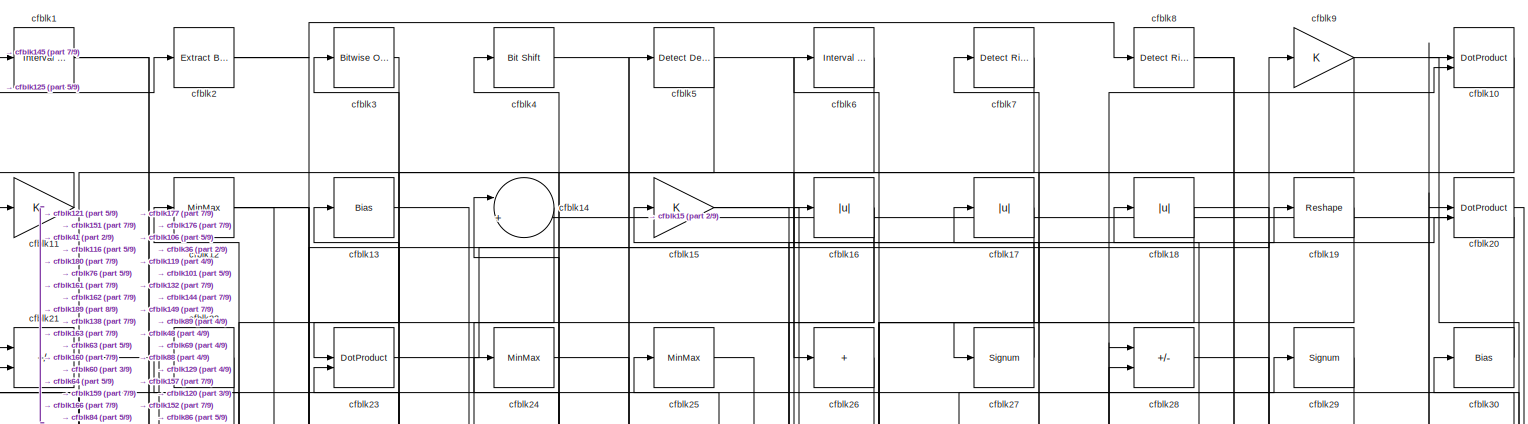
[diagram: root canvas - part 1/9, full width, top band]
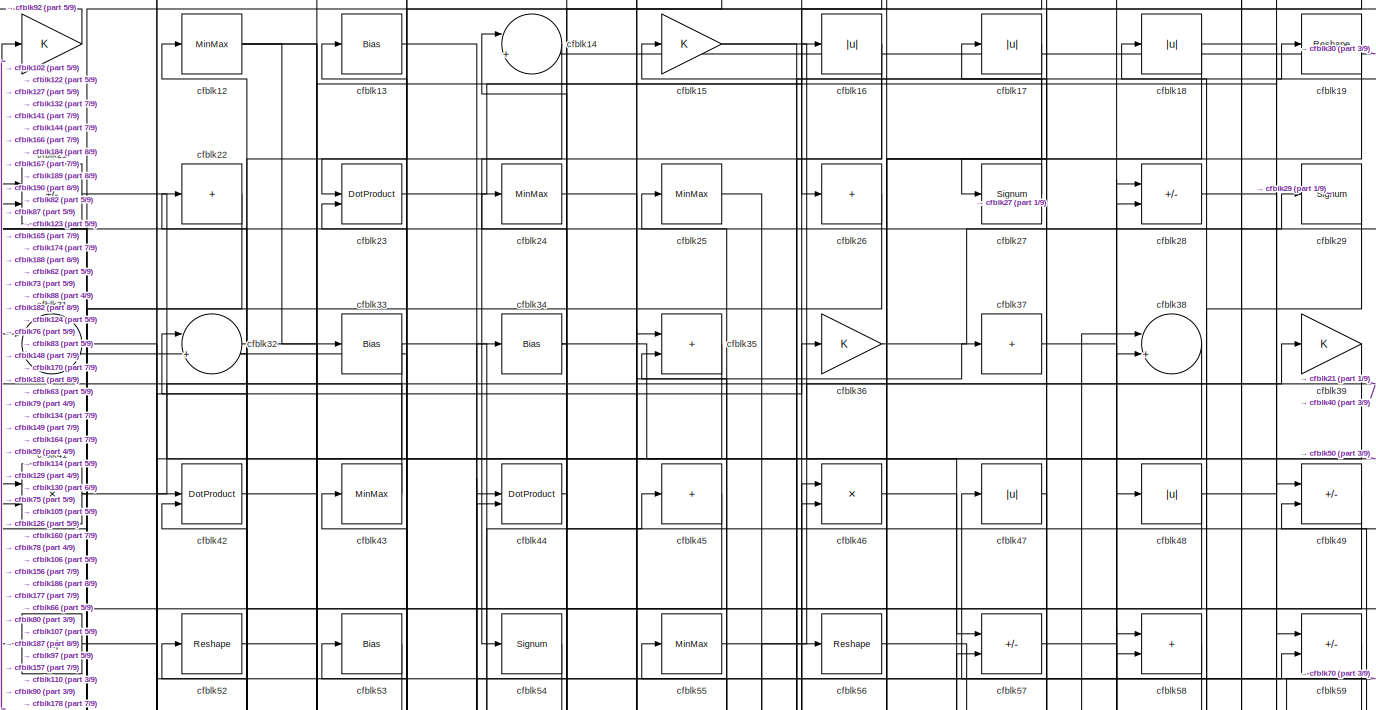
[diagram: root canvas - part 2/9, full width, top band]
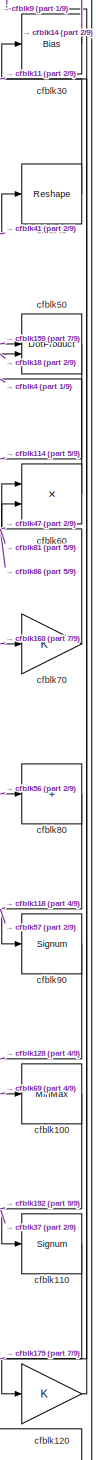
[diagram: root canvas - part 3/9, middle right region]
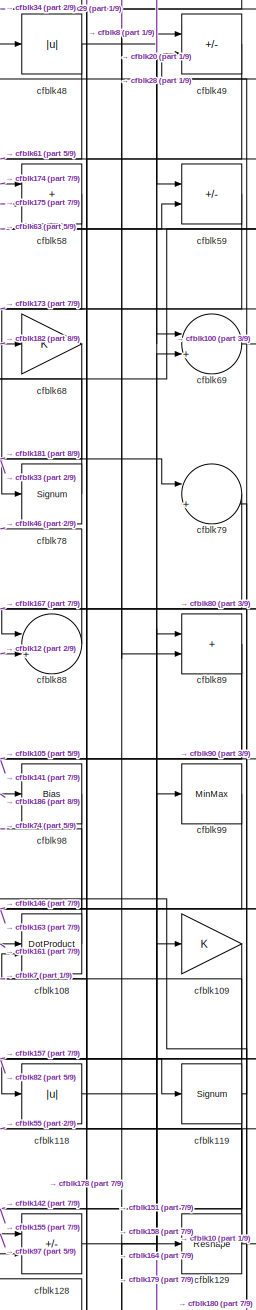
[diagram: root canvas - part 4/9, middle right region]
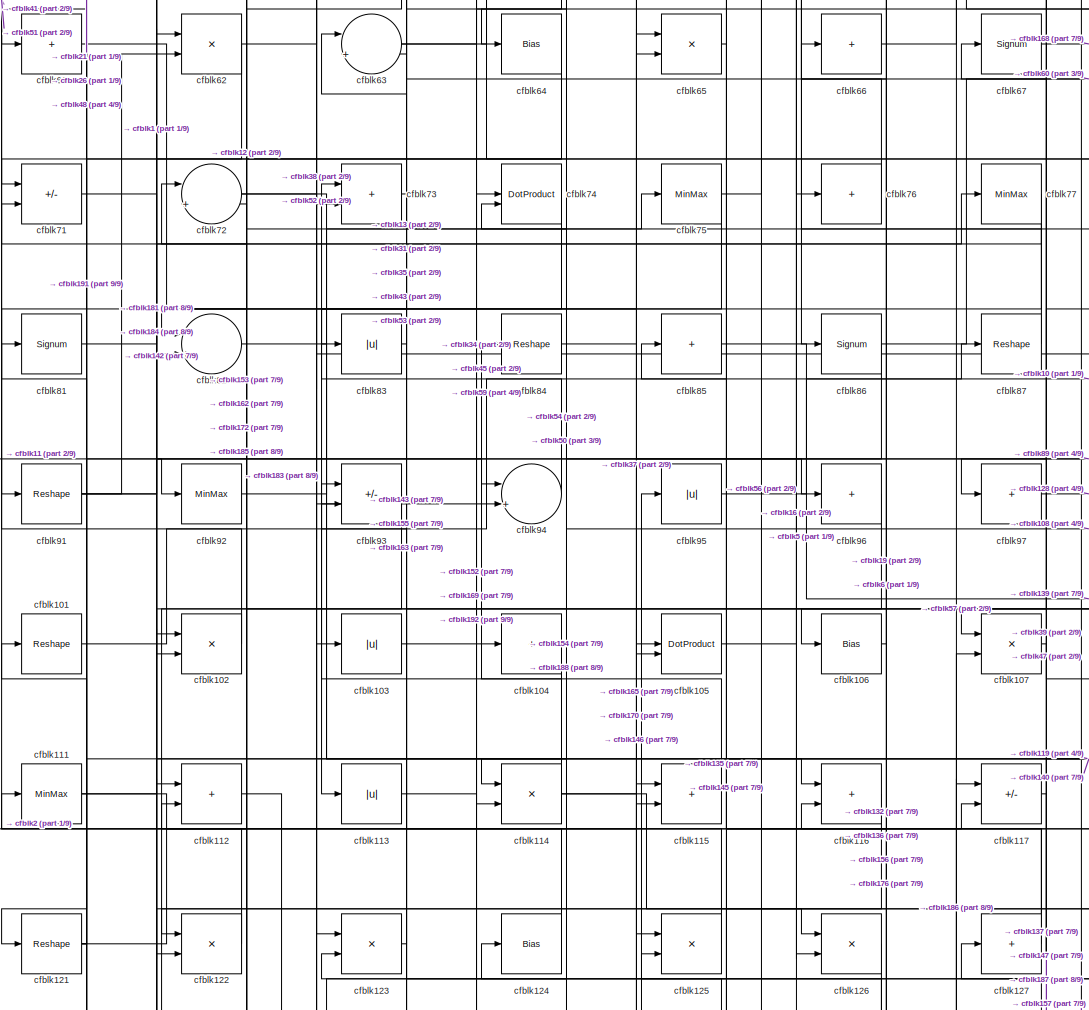
[diagram: root canvas - part 5/9, central region]
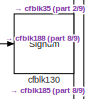
[diagram: root canvas - part 6/9, middle right region]
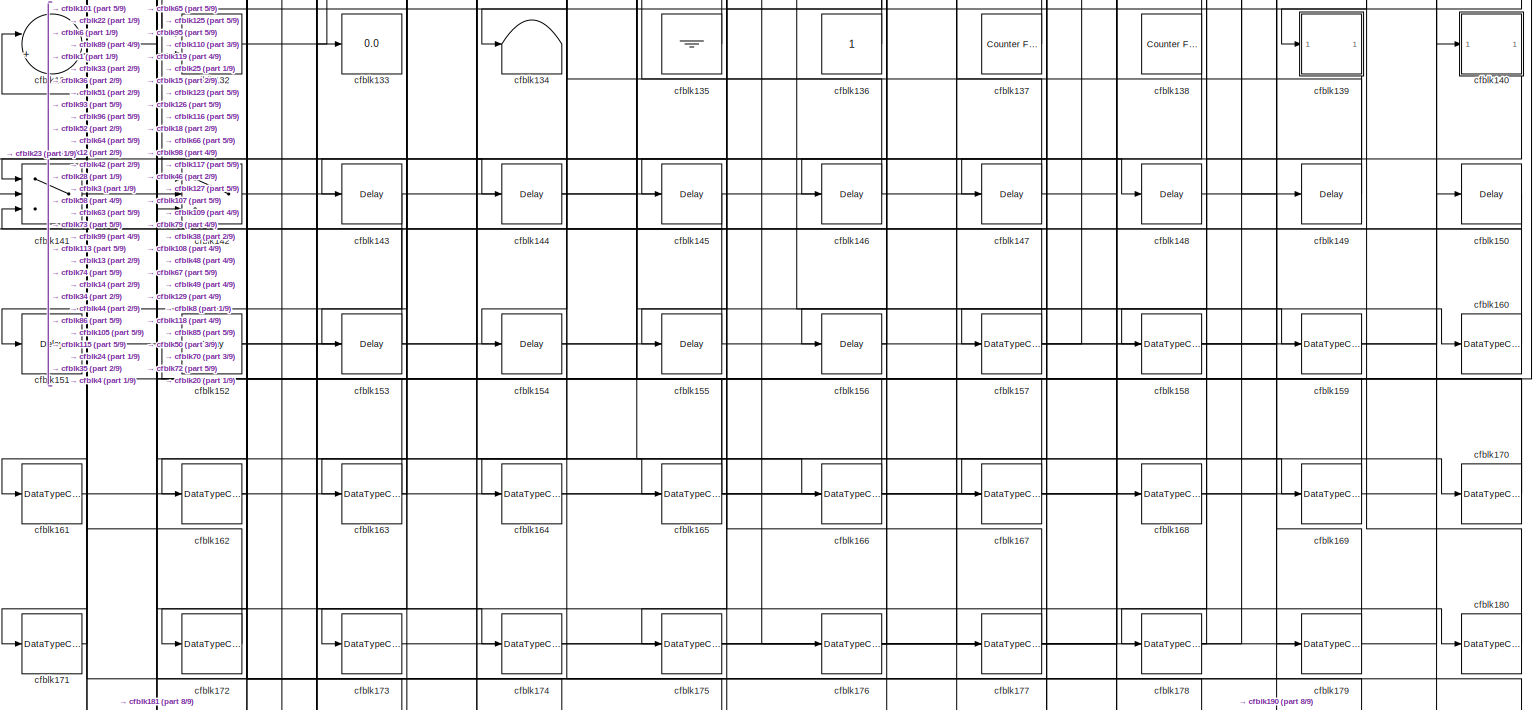
[diagram: root canvas - part 7/9, full width, bottom band]
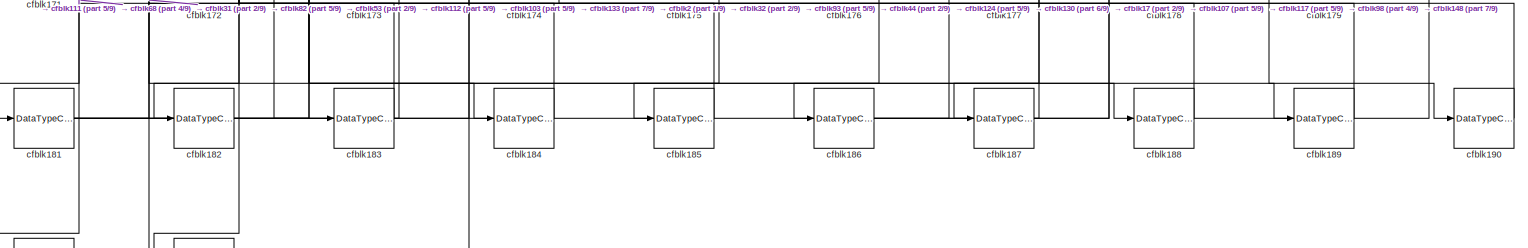
[diagram: root canvas - part 8/9, full width, bottom band]
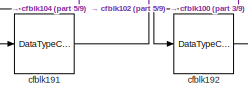
[diagram: root canvas - part 9/9, bottom left region]
MODEL slx_95c97eb327b1
KIND model
CONFIG AbsTol = auto
CONFIG EnableMultiTasking = off
CONFIG FixedStep = auto
CONFIG MaxStep = auto
CONFIG MinStep = auto
CONFIG RelTol = 1e-3
CONFIG SampleTimeConstraint = Unconstrained
CONFIG SolverName = VariableStepAuto
CONFIG StartTime = 0.0
CONFIG StopTime = 10.0
BLOCK [Reference] cfblk1  REF=hdlsllib/Logic and Bit
Operations/Interval Test
  SourceBlock = hdlsllib/Logic and Bit\nOperations/Interval Test
  SourceType = Interval Test
BLOCK [DotProduct] cfblk10
  OutDataTypeStr = Inherit: Inherit via internal rule
BLOCK [MinMax] cfblk100
BLOCK [Reshape] cfblk101
BLOCK [Product] cfblk102
  Inputs = */
  RndMeth = Zero
  SaturateOnIntegerOverflow = on
BLOCK [Abs] cfblk103
  SaturateOnIntegerOverflow = off
BLOCK [Sum] cfblk104
  IconShape = rectangular
  Inputs = +
BLOCK [DotProduct] cfblk105
  OutDataTypeStr = Inherit: Inherit via internal rule
BLOCK [Bias] cfblk106
  Bias = 0.0
  SaturateOnIntegerOverflow = off
BLOCK [Product] cfblk107
  Inputs = */
  RndMeth = Zero
  SaturateOnIntegerOverflow = on
BLOCK [DotProduct] cfblk108
  OutDataTypeStr = Inherit: Inherit via internal rule
BLOCK [Gain] cfblk109
BLOCK [Gain] cfblk11
BLOCK [Signum] cfblk110
BLOCK [MinMax] cfblk111
BLOCK [Sum] cfblk112
  IconShape = rectangular
BLOCK [Abs] cfblk113
  SaturateOnIntegerOverflow = off
BLOCK [Product] cfblk114
  Inputs = */
  RndMeth = Zero
  SaturateOnIntegerOverflow = on
BLOCK [Sum] cfblk115
  IconShape = rectangular
BLOCK [Sum] cfblk116
  IconShape = rectangular
BLOCK [Sum] cfblk117
  IconShape = rectangular
  Inputs = +-
BLOCK [Abs] cfblk118
  SaturateOnIntegerOverflow = off
BLOCK [Signum] cfblk119
BLOCK [MinMax] cfblk12
BLOCK [Gain] cfblk120
BLOCK [Reshape] cfblk121
BLOCK [Product] cfblk122
  Inputs = */
  RndMeth = Zero
  SaturateOnIntegerOverflow = on
BLOCK [Product] cfblk123
  Inputs = */
  RndMeth = Zero
  SaturateOnIntegerOverflow = on
BLOCK [Bias] cfblk124
  Bias = 0.0
  SaturateOnIntegerOverflow = off
BLOCK [Product] cfblk125
  Inputs = */
  RndMeth = Zero
  SaturateOnIntegerOverflow = on
BLOCK [Product] cfblk126
  Inputs = */
  RndMeth = Zero
  SaturateOnIntegerOverflow = on
BLOCK [Sum] cfblk127
  IconShape = rectangular
  Inputs = +
BLOCK [Sum] cfblk128
  IconShape = rectangular
  Inputs = +-
BLOCK [Reshape] cfblk129
BLOCK [Bias] cfblk13
  Bias = 0.0
  SaturateOnIntegerOverflow = off
BLOCK [Signum] cfblk130
BLOCK [Sum] cfblk131
  Inputs = |++
BLOCK [Sum] cfblk132
  IconShape = rectangular
BLOCK [Display] cfblk133
  Decimation = 1
BLOCK [Terminator] cfblk134
BLOCK [Ground] cfblk135
BLOCK [Constant] cfblk136
  SampleTime = -1
BLOCK [Reference] cfblk137  REF=hdlsllib/Sources/Counter
Free-Running
  SourceBlock = hdlsllib/Sources/Counter\nFree-Running
  SourceType = Counter Free-Running
BLOCK [Reference] cfblk138  REF=hdlsllib/Sources/Counter
Free-Running
  SourceBlock = hdlsllib/Sources/Counter\nFree-Running
  SourceType = Counter Free-Running
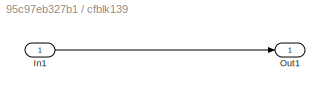
BLOCK [SubSystem] cfblk139
  LibrarySourceBlock = hdlsllib/Ports &\nSubsystems/Subsystem
BLOCK [Inport] cfblk139/In1
BLOCK [Outport] cfblk139/Out1
BLOCK [Sum] cfblk14
  Inputs = |++
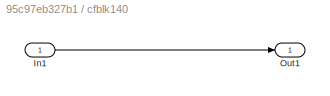
BLOCK [SubSystem] cfblk140
  LibrarySourceBlock = hdlsllib/Ports &\nSubsystems/Subsystem
BLOCK [Inport] cfblk140/In1
BLOCK [Outport] cfblk140/Out1
BLOCK [Switch] cfblk141
  InputSameDT = off
  SaturateOnIntegerOverflow = off
BLOCK [Switch] cfblk142
  InputSameDT = off
  SaturateOnIntegerOverflow = off
BLOCK [Delay] cfblk143
  InputPortMap = u0
  SampleTime = 1
BLOCK [Delay] cfblk144
  InputPortMap = u0
  SampleTime = 1
BLOCK [Delay] cfblk145
  InputPortMap = u0
  SampleTime = 1
BLOCK [Delay] cfblk146
  InputPortMap = u0
  SampleTime = 1
BLOCK [Delay] cfblk147
  InputPortMap = u0
  SampleTime = 1
BLOCK [Delay] cfblk148
  InputPortMap = u0
  SampleTime = 1
BLOCK [Delay] cfblk149
  InputPortMap = u0
  SampleTime = 1
BLOCK [Gain] cfblk15
BLOCK [Delay] cfblk150
  InputPortMap = u0
  SampleTime = 1
BLOCK [Delay] cfblk151
  InputPortMap = u0
  SampleTime = 1
BLOCK [Delay] cfblk152
  InputPortMap = u0
  SampleTime = 1
BLOCK [Delay] cfblk153
  InputPortMap = u0
  SampleTime = 1
BLOCK [Delay] cfblk154
  InputPortMap = u0
  SampleTime = 1
BLOCK [Delay] cfblk155
  InputPortMap = u0
  SampleTime = 1
BLOCK [Delay] cfblk156
  InputPortMap = u0
  SampleTime = 1
BLOCK [DataTypeConversion] cfblk157
  RndMeth = Floor
  SaturateOnIntegerOverflow = off
BLOCK [DataTypeConversion] cfblk158
  OutDataTypeStr = uint8
  RndMeth = Floor
  SaturateOnIntegerOverflow = off
BLOCK [DataTypeConversion] cfblk159
  OutDataTypeStr = uint8
  RndMeth = Floor
  SaturateOnIntegerOverflow = off
BLOCK [Abs] cfblk16
  SaturateOnIntegerOverflow = off
BLOCK [DataTypeConversion] cfblk160
  OutDataTypeStr = uint8
  RndMeth = Floor
  SaturateOnIntegerOverflow = off
BLOCK [DataTypeConversion] cfblk161
  OutDataTypeStr = uint8
  RndMeth = Floor
  SaturateOnIntegerOverflow = off
BLOCK [DataTypeConversion] cfblk162
  OutDataTypeStr = uint8
  RndMeth = Floor
  SaturateOnIntegerOverflow = off
BLOCK [DataTypeConversion] cfblk163
  RndMeth = Floor
  SaturateOnIntegerOverflow = off
BLOCK [DataTypeConversion] cfblk164
  OutDataTypeStr = uint8
  RndMeth = Floor
  SaturateOnIntegerOverflow = off
BLOCK [DataTypeConversion] cfblk165
  RndMeth = Floor
  SaturateOnIntegerOverflow = off
BLOCK [DataTypeConversion] cfblk166
  OutDataTypeStr = uint8
  RndMeth = Floor
  SaturateOnIntegerOverflow = off
BLOCK [DataTypeConversion] cfblk167
  OutDataTypeStr = uint8
  RndMeth = Floor
  SaturateOnIntegerOverflow = off
BLOCK [DataTypeConversion] cfblk168
  OutDataTypeStr = uint8
  RndMeth = Floor
  SaturateOnIntegerOverflow = off
BLOCK [DataTypeConversion] cfblk169
  OutDataTypeStr = uint8
  RndMeth = Floor
  SaturateOnIntegerOverflow = off
BLOCK [Abs] cfblk17
  SaturateOnIntegerOverflow = off
BLOCK [DataTypeConversion] cfblk170
  RndMeth = Floor
  SaturateOnIntegerOverflow = off
BLOCK [DataTypeConversion] cfblk171
  OutDataTypeStr = uint8
  RndMeth = Floor
  SaturateOnIntegerOverflow = off
BLOCK [DataTypeConversion] cfblk172
  OutDataTypeStr = uint8
  RndMeth = Floor
  SaturateOnIntegerOverflow = off
BLOCK [DataTypeConversion] cfblk173
  OutDataTypeStr = uint8
  RndMeth = Floor
  SaturateOnIntegerOverflow = off
BLOCK [DataTypeConversion] cfblk174
  OutDataTypeStr = uint8
  RndMeth = Floor
  SaturateOnIntegerOverflow = off
BLOCK [DataTypeConversion] cfblk175
  OutDataTypeStr = uint8
  RndMeth = Floor
  SaturateOnIntegerOverflow = off
BLOCK [DataTypeConversion] cfblk176
  RndMeth = Floor
  SaturateOnIntegerOverflow = off
BLOCK [DataTypeConversion] cfblk177
  OutDataTypeStr = uint8
  RndMeth = Floor
  SaturateOnIntegerOverflow = off
BLOCK [DataTypeConversion] cfblk178
  RndMeth = Floor
  SaturateOnIntegerOverflow = off
BLOCK [DataTypeConversion] cfblk179
  OutDataTypeStr = uint8
  RndMeth = Floor
  SaturateOnIntegerOverflow = off
BLOCK [Abs] cfblk18
  SaturateOnIntegerOverflow = off
BLOCK [DataTypeConversion] cfblk180
  OutDataTypeStr = uint8
  RndMeth = Floor
  SaturateOnIntegerOverflow = off
BLOCK [DataTypeConversion] cfblk181
  RndMeth = Floor
  SaturateOnIntegerOverflow = off
BLOCK [DataTypeConversion] cfblk182
  OutDataTypeStr = uint8
  RndMeth = Floor
  SaturateOnIntegerOverflow = off
BLOCK [DataTypeConversion] cfblk183
  RndMeth = Floor
  SaturateOnIntegerOverflow = off
BLOCK [DataTypeConversion] cfblk184
  OutDataTypeStr = uint8
  RndMeth = Floor
  SaturateOnIntegerOverflow = off
BLOCK [DataTypeConversion] cfblk185
  OutDataTypeStr = uint8
  RndMeth = Floor
  SaturateOnIntegerOverflow = off
BLOCK [DataTypeConversion] cfblk186
  RndMeth = Floor
  SaturateOnIntegerOverflow = off
BLOCK [DataTypeConversion] cfblk187
  OutDataTypeStr = uint8
  RndMeth = Floor
  SaturateOnIntegerOverflow = off
BLOCK [DataTypeConversion] cfblk188
  RndMeth = Floor
  SaturateOnIntegerOverflow = off
BLOCK [DataTypeConversion] cfblk189
  OutDataTypeStr = uint8
  RndMeth = Floor
  SaturateOnIntegerOverflow = off
BLOCK [Reshape] cfblk19
BLOCK [DataTypeConversion] cfblk190
  OutDataTypeStr = uint8
  RndMeth = Floor
  SaturateOnIntegerOverflow = off
BLOCK [DataTypeConversion] cfblk191
  OutDataTypeStr = uint8
  RndMeth = Floor
  SaturateOnIntegerOverflow = off
BLOCK [DataTypeConversion] cfblk192
  OutDataTypeStr = uint8
  RndMeth = Floor
  SaturateOnIntegerOverflow = off
BLOCK [Reference] cfblk2  REF=simulink/Logic and Bit
Operations/Extract Bits
  LibrarySourceBlock = hdlsllib/Logic and Bit\nOperations/Extract Bits
  SourceBlock = simulink/Logic and Bit\nOperations/Extract Bits
  SourceType = Extract Bits
BLOCK [DotProduct] cfblk20
  OutDataTypeStr = Inherit: Inherit via internal rule
BLOCK [Sum] cfblk21
  IconShape = rectangular
  Inputs = +-
BLOCK [Sum] cfblk22
  IconShape = rectangular
  Inputs = +
BLOCK [DotProduct] cfblk23
  OutDataTypeStr = Inherit: Inherit via internal rule
BLOCK [MinMax] cfblk24
BLOCK [MinMax] cfblk25
BLOCK [Sum] cfblk26
  IconShape = rectangular
  Inputs = +
BLOCK [Signum] cfblk27
BLOCK [Sum] cfblk28
  IconShape = rectangular
  Inputs = +-
BLOCK [Signum] cfblk29
BLOCK [Reference] cfblk3  REF=simulink/Logic and Bit
Operations/Bitwise
Operator
  LibrarySourceBlock = hdlsllib/Logic and Bit\nOperations/Bitwise\nOperator
  SourceBlock = simulink/Logic and Bit\nOperations/Bitwise\nOperator
  SourceType = Bitwise Operator
BLOCK [Bias] cfblk30
  Bias = 0.0
  SaturateOnIntegerOverflow = off
BLOCK [Sum] cfblk31
  Inputs = |++
BLOCK [Sum] cfblk32
  Inputs = |++
BLOCK [Bias] cfblk33
  Bias = 0.0
  SaturateOnIntegerOverflow = off
BLOCK [Bias] cfblk34
  Bias = 0.0
  SaturateOnIntegerOverflow = off
BLOCK [Sum] cfblk35
  IconShape = rectangular
BLOCK [Gain] cfblk36
BLOCK [Sum] cfblk37
  IconShape = rectangular
  Inputs = +
BLOCK [Sum] cfblk38
  Inputs = |++
BLOCK [Gain] cfblk39
BLOCK [Reference] cfblk4  REF=hdlsllib/Logic and Bit
Operations/Bit Shift
  SourceBlock = hdlsllib/Logic and Bit\nOperations/Bit Shift
  SourceType = Bit Shift
BLOCK [Reshape] cfblk40
BLOCK [Product] cfblk41
  Inputs = */
  RndMeth = Zero
  SaturateOnIntegerOverflow = on
BLOCK [DotProduct] cfblk42
  OutDataTypeStr = Inherit: Inherit via internal rule
BLOCK [MinMax] cfblk43
BLOCK [DotProduct] cfblk44
  OutDataTypeStr = Inherit: Inherit via internal rule
BLOCK [Sum] cfblk45
  IconShape = rectangular
  Inputs = +
BLOCK [Product] cfblk46
  Inputs = */
  RndMeth = Zero
  SaturateOnIntegerOverflow = on
BLOCK [Abs] cfblk47
  SaturateOnIntegerOverflow = off
BLOCK [Abs] cfblk48
  SaturateOnIntegerOverflow = off
BLOCK [Sum] cfblk49
  IconShape = rectangular
  Inputs = +-
BLOCK [Reference] cfblk5  REF=simulink/Logic and Bit
Operations/Detect
Decrease
  LibrarySourceBlock = hdlsllib/Logic and Bit\nOperations/Detect\nDecrease
  SourceBlock = simulink/Logic and Bit\nOperations/Detect\nDecrease
  SourceType = Detect Decrease
BLOCK [DotProduct] cfblk50
  OutDataTypeStr = Inherit: Inherit via internal rule
BLOCK [Abs] cfblk51
  SaturateOnIntegerOverflow = off
BLOCK [Reshape] cfblk52
BLOCK [Bias] cfblk53
  Bias = 0.0
  SaturateOnIntegerOverflow = off
BLOCK [Signum] cfblk54
BLOCK [MinMax] cfblk55
BLOCK [Reshape] cfblk56
BLOCK [Sum] cfblk57
  IconShape = rectangular
  Inputs = +-
BLOCK [Sum] cfblk58
  IconShape = rectangular
BLOCK [Sum] cfblk59
  IconShape = rectangular
  Inputs = +-
BLOCK [Reference] cfblk6  REF=hdlsllib/Logic and Bit
Operations/Interval Test
  SourceBlock = hdlsllib/Logic and Bit\nOperations/Interval Test
  SourceType = Interval Test
BLOCK [Product] cfblk60
  Inputs = */
  RndMeth = Zero
  SaturateOnIntegerOverflow = on
BLOCK [Sum] cfblk61
  IconShape = rectangular
  Inputs = +
BLOCK [Product] cfblk62
  Inputs = */
  RndMeth = Zero
  SaturateOnIntegerOverflow = on
BLOCK [Sum] cfblk63
  Inputs = |++
BLOCK [Bias] cfblk64
  Bias = 0.0
  SaturateOnIntegerOverflow = off
BLOCK [Product] cfblk65
  Inputs = */
  RndMeth = Zero
  SaturateOnIntegerOverflow = on
BLOCK [Sum] cfblk66
  IconShape = rectangular
  Inputs = +
BLOCK [Signum] cfblk67
BLOCK [Gain] cfblk68
BLOCK [Sum] cfblk69
  Inputs = |++
BLOCK [Reference] cfblk7  REF=hdlsllib/Logic and Bit
Operations/Detect Rise
Nonnegative
  SourceBlock = hdlsllib/Logic and Bit\nOperations/Detect Rise\nNonnegative
  SourceType = Detect Rise Nonnegative
BLOCK [Gain] cfblk70
BLOCK [Sum] cfblk71
  IconShape = rectangular
  Inputs = +-
BLOCK [Sum] cfblk72
  Inputs = |++
BLOCK [Sum] cfblk73
  IconShape = rectangular
BLOCK [DotProduct] cfblk74
  OutDataTypeStr = Inherit: Inherit via internal rule
BLOCK [MinMax] cfblk75
BLOCK [Sum] cfblk76
  IconShape = rectangular
  Inputs = +
BLOCK [MinMax] cfblk77
BLOCK [Signum] cfblk78
BLOCK [Sum] cfblk79
  Inputs = |++
BLOCK [Reference] cfblk8  REF=hdlsllib/Logic and Bit
Operations/Detect Rise
Nonnegative
  SourceBlock = hdlsllib/Logic and Bit\nOperations/Detect Rise\nNonnegative
  SourceType = Detect Rise Nonnegative
BLOCK [Sum] cfblk80
  IconShape = rectangular
  Inputs = +
BLOCK [Signum] cfblk81
BLOCK [Sum] cfblk82
  Inputs = |++
BLOCK [Abs] cfblk83
  SaturateOnIntegerOverflow = off
BLOCK [Reshape] cfblk84
BLOCK [Sum] cfblk85
  IconShape = rectangular
  Inputs = +
BLOCK [Signum] cfblk86
BLOCK [Reshape] cfblk87
BLOCK [Sum] cfblk88
  Inputs = |++
BLOCK [Sum] cfblk89
  IconShape = rectangular
BLOCK [Gain] cfblk9
BLOCK [Signum] cfblk90
BLOCK [Reshape] cfblk91
BLOCK [MinMax] cfblk92
BLOCK [Sum] cfblk93
  IconShape = rectangular
  Inputs = +-
BLOCK [Sum] cfblk94
  Inputs = |++
BLOCK [Abs] cfblk95
  SaturateOnIntegerOverflow = off
BLOCK [Sum] cfblk96
  IconShape = rectangular
  Inputs = +
BLOCK [Sum] cfblk97
  IconShape = rectangular
  Inputs = +
BLOCK [Bias] cfblk98
  Bias = 0.0
  SaturateOnIntegerOverflow = off
BLOCK [MinMax] cfblk99
LINE cfblk100:1 -> cfblk192:1
LINE cfblk101:1 -> cfblk10:2
LINE cfblk102:1 -> cfblk51:1
LINE cfblk103:1 -> cfblk75:1
LINE cfblk104:1 -> cfblk191:1
LINE cfblk105:1 -> cfblk19:1
LINE cfblk106:1 -> cfblk6:1
LINE cfblk107:1 -> cfblk147:1
LINE cfblk108:1 -> cfblk74:2
LINE cfblk109:1 -> cfblk157:1
LINE cfblk10:1 -> cfblk64:1
LINE cfblk110:1 -> cfblk175:1
NET cfblk111:1 -> cfblk117:2, cfblk77:1
LINE cfblk112:1 -> cfblk183:1
LINE cfblk113:1 -> cfblk169:1
NET cfblk114:1 -> cfblk126:1, cfblk37:1, cfblk93:1
LINE cfblk115:1 -> cfblk84:1
LINE cfblk116:1 -> cfblk172:1
LINE cfblk117:1 -> cfblk187:1
LINE cfblk118:1 -> cfblk179:1
NET cfblk119:1 -> cfblk142:3, cfblk155:1, cfblk79:2, cfblk7:1
LINE cfblk11:1 -> cfblk92:1
LINE cfblk120:1 -> cfblk30:1
NET cfblk121:1 -> cfblk21:1, cfblk65:2, cfblk81:1
LINE cfblk122:1 -> cfblk41:1
LINE cfblk123:1 -> cfblk53:1
LINE cfblk124:1 -> cfblk43:1
LINE cfblk125:1 -> cfblk2:1
LINE cfblk126:1 -> cfblk132:1
NET cfblk127:1 -> cfblk41:2, cfblk85:1
LINE cfblk128:1 -> cfblk69:2
NET cfblk129:1 -> cfblk108:2, cfblk10:1, cfblk55:1
NET cfblk12:1 -> cfblk174:1, cfblk33:1, cfblk88:2
NET cfblk130:1 -> cfblk185:1, cfblk35:2
LINE cfblk131:1 -> cfblk170:1
LINE cfblk132:1 -> cfblk28:1
LINE cfblk135:1 -> cfblk95:1
LINE cfblk136:1 -> cfblk123:2
LINE cfblk137:1 -> cfblk127:1
NET cfblk138:1 -> cfblk141:2, cfblk23:2
LINE cfblk139/In1:1 -> cfblk139/Out1:1
LINE cfblk139:1 -> cfblk158:1
LINE cfblk13:1 -> cfblk148:1
LINE cfblk140/In1:1 -> cfblk140/Out1:1
LINE cfblk140:1 -> cfblk153:1
LINE cfblk141:1 -> cfblk36:1
LINE cfblk142:1 -> cfblk65:1
LINE cfblk143:1 -> cfblk171:1
LINE cfblk144:1 -> cfblk28:2
LINE cfblk145:1 -> cfblk1:1
LINE cfblk146:1 -> cfblk125:2
LINE cfblk147:1 -> cfblk117:1
LINE cfblk148:1 -> cfblk190:1
LINE cfblk149:1 -> cfblk14:1
LINE cfblk14:1 -> cfblk54:1
LINE cfblk150:1 -> cfblk141:3
LINE cfblk151:1 -> cfblk89:1
LINE cfblk152:1 -> cfblk74:1
LINE cfblk153:1 -> cfblk72:1
LINE cfblk154:1 -> cfblk115:2
LINE cfblk155:1 -> cfblk63:1
LINE cfblk156:1 -> cfblk116:2
NET cfblk157:1 -> cfblk105:1, cfblk20:1, cfblk38:1
LINE cfblk158:1 -> cfblk109:1
LINE cfblk159:1 -> cfblk50:1
NET cfblk15:1 -> cfblk160:1, cfblk57:1
LINE cfblk160:1 -> cfblk24:1
LINE cfblk161:1 -> cfblk108:1
LINE cfblk162:1 -> cfblk22:1
NET cfblk163:1 -> cfblk3:1, cfblk72:2
LINE cfblk164:1 -> cfblk99:1
NET cfblk165:1 -> cfblk101:1, cfblk35:1, cfblk38:2
LINE cfblk166:1 -> cfblk42:1
LINE cfblk167:1 -> cfblk42:2
LINE cfblk168:1 -> cfblk70:1
LINE cfblk169:1 -> cfblk67:1
NET cfblk16:1 -> cfblk122:1, cfblk126:2
NET cfblk170:1 -> cfblk115:1, cfblk44:1, cfblk52:1
LINE cfblk171:1 -> cfblk131:1
LINE cfblk172:1 -> cfblk131:2
LINE cfblk173:1 -> cfblk48:1
LINE cfblk174:1 -> cfblk58:1
LINE cfblk175:1 -> cfblk58:2
NET cfblk176:1 -> cfblk150:1, cfblk66:1
LINE cfblk177:1 -> cfblk25:1
NET cfblk178:1 -> cfblk129:1, cfblk18:1
LINE cfblk179:1 -> cfblk49:1
LINE cfblk17:1 -> cfblk186:1
LINE cfblk180:1 -> cfblk49:2
NET cfblk181:1 -> cfblk103:1, cfblk133:1, cfblk44:2, cfblk82:2
LINE cfblk182:1 -> cfblk68:1
NET cfblk183:1 -> cfblk111:1, cfblk93:2
LINE cfblk184:1 -> cfblk112:1
LINE cfblk185:1 -> cfblk112:2
NET cfblk186:1 -> cfblk107:2, cfblk98:1
LINE cfblk187:1 -> cfblk17:1
NET cfblk188:1 -> cfblk124:1, cfblk130:1
LINE cfblk189:1 -> cfblk32:1
NET cfblk18:1 -> cfblk156:1, cfblk50:2
LINE cfblk190:1 -> cfblk32:2
LINE cfblk191:1 -> cfblk102:1
LINE cfblk192:1 -> cfblk104:1
LINE cfblk19:1 -> cfblk106:1
NET cfblk1:1 -> cfblk116:1, cfblk180:1
LINE cfblk20:1 -> cfblk152:1
LINE cfblk21:1 -> cfblk76:1
LINE cfblk22:1 -> cfblk161:1
LINE cfblk23:1 -> cfblk9:1
LINE cfblk24:1 -> cfblk159:1
LINE cfblk25:1 -> cfblk176:1
LINE cfblk26:1 -> cfblk121:1
LINE cfblk27:1 -> cfblk15:1
LINE cfblk28:1 -> cfblk69:1
LINE cfblk29:1 -> cfblk88:1
NET cfblk2:1 -> cfblk189:1, cfblk8:1
LINE cfblk30:1 -> cfblk14:2
LINE cfblk31:1 -> cfblk184:1
LINE cfblk32:1 -> cfblk188:1
NET cfblk33:1 -> cfblk132:2, cfblk79:1
NET cfblk34:1 -> cfblk164:1, cfblk59:1
LINE cfblk35:1 -> cfblk83:1
LINE cfblk36:1 -> cfblk29:1
LINE cfblk37:1 -> cfblk110:1
LINE cfblk38:1 -> cfblk73:2
LINE cfblk39:1 -> cfblk107:1
LINE cfblk3:1 -> cfblk23:1
LINE cfblk40:1 -> cfblk11:1
NET cfblk41:1 -> cfblk21:2, cfblk40:1
LINE cfblk42:1 -> cfblk165:1
LINE cfblk43:1 -> cfblk31:1
LINE cfblk44:1 -> cfblk134:1
LINE cfblk45:1 -> cfblk82:1
LINE cfblk46:1 -> cfblk177:1
LINE cfblk47:1 -> cfblk97:1
NET cfblk48:1 -> cfblk20:2, cfblk61:1
LINE cfblk49:1 -> cfblk178:1
LINE cfblk4:1 -> cfblk166:1
LINE cfblk50:1 -> cfblk114:1
LINE cfblk51:1 -> cfblk144:1
LINE cfblk52:1 -> cfblk123:1
LINE cfblk53:1 -> cfblk182:1
LINE cfblk54:1 -> cfblk114:2
LINE cfblk55:1 -> cfblk39:1
LINE cfblk56:1 -> cfblk80:1
LINE cfblk57:1 -> cfblk90:1
LINE cfblk58:1 -> cfblk173:1
LINE cfblk59:1 -> cfblk78:1
NET cfblk5:1 -> cfblk63:2, cfblk86:1
LINE cfblk60:1 -> cfblk4:1
LINE cfblk61:1 -> cfblk125:1
NET cfblk62:1 -> cfblk16:1, cfblk71:1
NET cfblk63:1 -> cfblk45:1, cfblk59:2
NET cfblk64:1 -> cfblk122:2, cfblk162:1
LINE cfblk65:1 -> cfblk145:1
LINE cfblk66:1 -> cfblk57:2
LINE cfblk67:1 -> cfblk168:1
LINE cfblk68:1 -> cfblk181:1
LINE cfblk69:1 -> cfblk100:1
LINE cfblk6:1 -> cfblk151:1
LINE cfblk70:1 -> cfblk47:1
LINE cfblk71:1 -> cfblk94:1
NET cfblk72:1 -> cfblk140:1, cfblk94:2
LINE cfblk73:1 -> cfblk143:1
LINE cfblk74:1 -> cfblk91:1
NET cfblk75:1 -> cfblk102:2, cfblk56:1
LINE cfblk76:1 -> cfblk31:2
NET cfblk77:1 -> cfblk113:1, cfblk71:2
LINE cfblk78:1 -> cfblk46:2
LINE cfblk79:1 -> cfblk167:1
LINE cfblk7:1 -> cfblk26:1
LINE cfblk80:1 -> cfblk118:1
LINE cfblk81:1 -> cfblk60:2
LINE cfblk82:1 -> cfblk119:1
LINE cfblk83:1 -> cfblk13:1
LINE cfblk84:1 -> cfblk5:1
LINE cfblk85:1 -> cfblk139:1
NET cfblk86:1 -> cfblk154:1, cfblk60:1
LINE cfblk87:1 -> cfblk12:1
LINE cfblk88:1 -> cfblk46:1
NET cfblk89:1 -> cfblk105:2, cfblk141:1
NET cfblk8:1 -> cfblk149:1, cfblk89:2
LINE cfblk90:1 -> cfblk128:2
NET cfblk91:1 -> cfblk62:1, cfblk62:2, cfblk96:1
LINE cfblk92:1 -> cfblk34:1
LINE cfblk93:1 -> cfblk142:2
LINE cfblk94:1 -> cfblk73:1
LINE cfblk95:1 -> cfblk87:1
LINE cfblk96:1 -> cfblk142:1
LINE cfblk97:1 -> cfblk128:1
LINE cfblk98:1 -> cfblk146:1
LINE cfblk99:1 -> cfblk163:1
NET cfblk9:1 -> cfblk120:1, cfblk27:1
note: NET lines group one-source signal fan-out (src -> all destinations, sorted); 1:1 wires keep LINE
